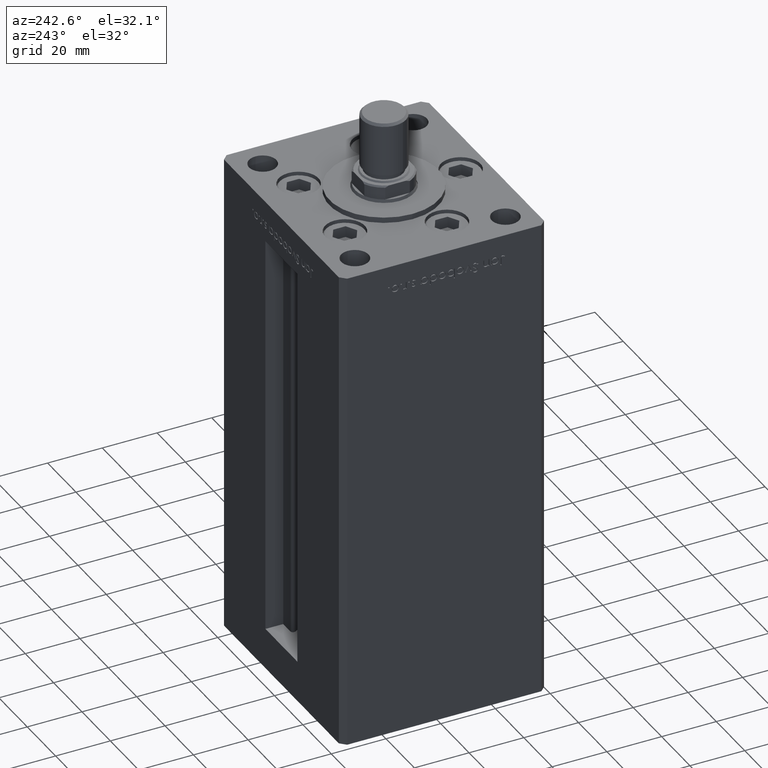
[diagram: clean part render]
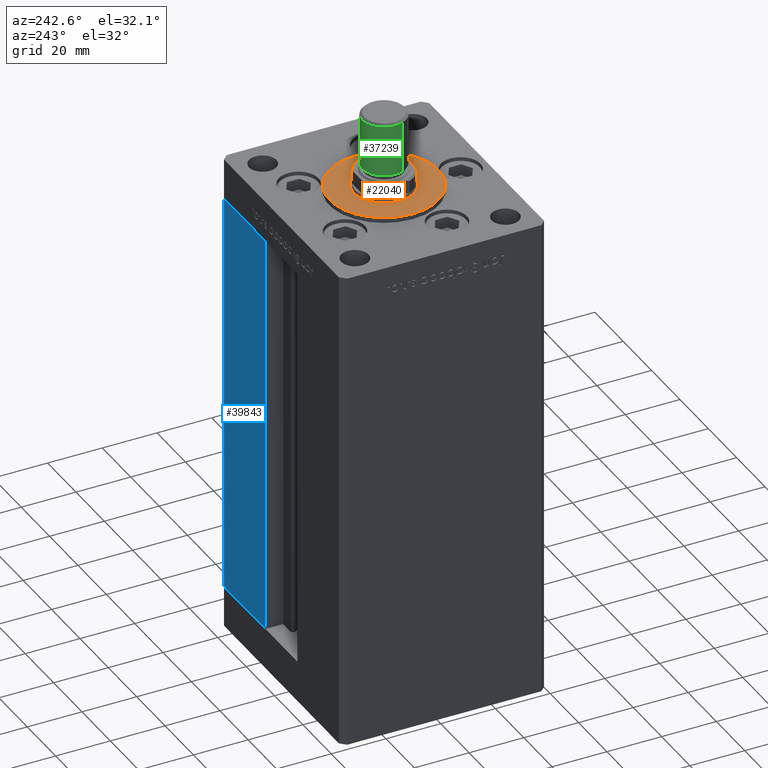
[diagram: same view with three faces highlighted in distinct colors, each labeled with its STEP entity id]
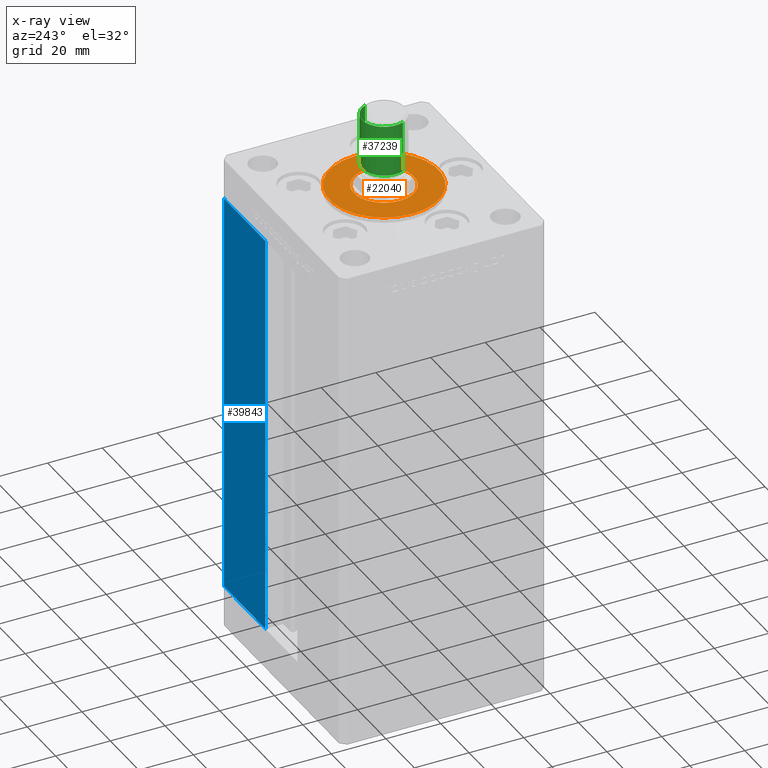
[diagram: x-ray of the same camera — body ghosted, the three highlighted faces saturated]
A machine part, auxiliary view with three faces highlighted in distinct colors.
The next image is the same camera in x-ray (body ghosted, the three faces saturated) — at least one of them is partly hidden behind the body in this view.
Their STEP definitions:

[orange] entity #22040 — the highlighted planar face has unit normal (0, 0, 1).
#611 = VERTEX_POINT ( 'NONE', #17839 ) ;
#1675 = CARTESIAN_POINT ( 'NONE',  ( 20.00000000000000000, -4.489600305612522259E-15, 2.000000000000000000 ) ) ;
#2481 = CARTESIAN_POINT ( 'NONE',  ( 0.000000000000000000, -6.938893903907228378E-15, 2.000000000000000000 ) ) ;
#2621 = AXIS2_PLACEMENT_3D ( 'NONE', #44705, #20838, #4130 ) ;
#4130 = DIRECTION ( 'NONE',  ( 1.000000000000000000, 0.000000000000000000, -0.000000000000000000 ) ) ;
#4495 = CIRCLE ( 'NONE', #18065, 20.00000000000000000 ) ;
#5352 = ORIENTED_EDGE ( 'NONE', *, *, #26842, .T. ) ;
#5939 = AXIS2_PLACEMENT_3D ( 'NONE', #50879, #10588, #26491 ) ;
#6034 = ORIENTED_EDGE ( 'NONE', *, *, #25236, .F. ) ;
#7575 = CARTESIAN_POINT ( 'NONE',  ( 11.00000000000000000, -6.938893903907228378E-15, 2.000000000000000000 ) ) ;
#8371 = FACE_OUTER_BOUND ( 'NONE', #49783, .T. ) ;
#10588 = DIRECTION ( 'NONE',  ( 0.000000000000000000, 0.000000000000000000, 1.000000000000000000 ) ) ;
#12049 = AXIS2_PLACEMENT_3D ( 'NONE', #21937, #33885, #49786 ) ;
#12111 = DIRECTION ( 'NONE',  ( 0.000000000000000000, 0.000000000000000000, 1.000000000000000000 ) ) ;
#14811 = ORIENTED_EDGE ( 'NONE', *, *, #21302, .F. ) ;
#17706 = VERTEX_POINT ( 'NONE', #7575 ) ;
#17839 = CARTESIAN_POINT ( 'NONE',  ( -20.00000000000000000, -6.938893903907228378E-15, 2.000000000000000000 ) ) ;
#18065 = AXIS2_PLACEMENT_3D ( 'NONE', #24314, #12111, #35999 ) ;
#18660 = DIRECTION ( 'NONE',  ( 1.000000000000000000, 0.000000000000000000, 0.000000000000000000 ) ) ;
#20838 = DIRECTION ( 'NONE',  ( 0.000000000000000000, 0.000000000000000000, 1.000000000000000000 ) ) ;
#21302 = EDGE_CURVE ( 'NONE', #17706, #40964, #51724, .T. ) ;
#21937 = CARTESIAN_POINT ( 'NONE',  ( 0.000000000000000000, -6.938893903907228378E-15, 2.000000000000000000 ) ) ;
#22040 = ADVANCED_FACE ( 'NONE', ( #28010, #8371 ), #37276, .T. ) ;
#23066 = CIRCLE ( 'NONE', #12049, 20.00000000000000000 ) ;
#24119 = ORIENTED_EDGE ( 'NONE', *, *, #32522, .T. ) ;
#24314 = CARTESIAN_POINT ( 'NONE',  ( 0.000000000000000000, -6.938893903907228378E-15, 2.000000000000000000 ) ) ;
#25236 = EDGE_CURVE ( 'NONE', #40964, #17706, #34871, .T. ) ;
#26491 = DIRECTION ( 'NONE',  ( 1.000000000000000000, 0.000000000000000000, 0.000000000000000000 ) ) ;
#26842 = EDGE_CURVE ( 'NONE', #37580, #611, #23066, .T. ) ;
#28010 = FACE_BOUND ( 'NONE', #36145, .T. ) ;
#30335 = DIRECTION ( 'NONE',  ( 0.000000000000000000, 0.000000000000000000, 1.000000000000000000 ) ) ;
#32522 = EDGE_CURVE ( 'NONE', #611, #37580, #4495, .T. ) ;
#33885 = DIRECTION ( 'NONE',  ( 0.000000000000000000, 0.000000000000000000, 1.000000000000000000 ) ) ;
#34871 = CIRCLE ( 'NONE', #36573, 11.00000000000000000 ) ;
#35999 = DIRECTION ( 'NONE',  ( 1.000000000000000000, 0.000000000000000000, 0.000000000000000000 ) ) ;
#36145 = EDGE_LOOP ( 'NONE', ( #14811, #6034 ) ) ;
#36573 = AXIS2_PLACEMENT_3D ( 'NONE', #2481, #30335, #18660 ) ;
#37276 = PLANE ( 'NONE',  #2621 ) ;
#37580 = VERTEX_POINT ( 'NONE', #1675 ) ;
#40964 = VERTEX_POINT ( 'NONE', #52312 ) ;
#44705 = CARTESIAN_POINT ( 'NONE',  ( 0.000000000000000000, -6.938893903907228378E-15, 2.000000000000000000 ) ) ;
#49783 = EDGE_LOOP ( 'NONE', ( #24119, #5352 ) ) ;
#49786 = DIRECTION ( 'NONE',  ( 1.000000000000000000, 0.000000000000000000, 0.000000000000000000 ) ) ;
#50879 = CARTESIAN_POINT ( 'NONE',  ( 0.000000000000000000, -6.938893903907228378E-15, 2.000000000000000000 ) ) ;
#51724 = CIRCLE ( 'NONE', #5939, 11.00000000000000000 ) ;
#52312 = CARTESIAN_POINT ( 'NONE',  ( -11.00000000000000000, -5.591782424845139381E-15, 2.000000000000000000 ) ) ;

[blue] entity #39843 — the highlighted planar face has unit normal (-0, -1, 0).
#3112 = CARTESIAN_POINT ( 'NONE',  ( 11.24999999999999289, 37.50000000000000000, 148.5000000000000000 ) ) ;
#3376 = EDGE_LOOP ( 'NONE', ( #11034, #17544, #28561, #46643 ) ) ;
#5522 = EDGE_CURVE ( 'NONE', #48708, #41738, #35134, .T. ) ;
#6355 = DIRECTION ( 'NONE',  ( -2.372271420139223331E-16, -1.000000000000000000, 0.000000000000000000 ) ) ;
#10512 = DIRECTION ( 'NONE',  ( 1.000000000000000000, 0.000000000000000000, 0.000000000000000000 ) ) ;
#10798 = CARTESIAN_POINT ( 'NONE',  ( -11.25000000000000000, 37.50000000000000000, 0.000000000000000000 ) ) ;
#11034 = ORIENTED_EDGE ( 'NONE', *, *, #27073, .T. ) ;
#11337 = CARTESIAN_POINT ( 'NONE',  ( 11.25000000000000000, 37.50000000000000000, 0.000000000000000000 ) ) ;
#15023 = EDGE_CURVE ( 'NONE', #26996, #40063, #18763, .T. ) ;
#17544 = ORIENTED_EDGE ( 'NONE', *, *, #15023, .T. ) ;
#17774 = VECTOR ( 'NONE', #19549, 1000.000000000000000 ) ;
#18683 = CARTESIAN_POINT ( 'NONE',  ( 40.50000000000000000, 37.50000000000000711, 148.5000000000000000 ) ) ;
#18763 = LINE ( 'NONE', #11337, #17774 ) ;
#19264 = LINE ( 'NONE', #51596, #45171 ) ;
#19549 = DIRECTION ( 'NONE',  ( -0.000000000000000000, -0.000000000000000000, 1.000000000000000000 ) ) ;
#19606 = DIRECTION ( 'NONE',  ( 1.000000000000000000, -2.372271420139223331E-16, 0.000000000000000000 ) ) ;
#24166 = AXIS2_PLACEMENT_3D ( 'NONE', #39239, #6355, #19606 ) ;
#26777 = PLANE ( 'NONE',  #24166 ) ;
#26996 = VERTEX_POINT ( 'NONE', #30423 ) ;
#27073 = EDGE_CURVE ( 'NONE', #41738, #26996, #39434, .T. ) ;
#28561 = ORIENTED_EDGE ( 'NONE', *, *, #50042, .T. ) ;
#29048 = VECTOR ( 'NONE', #43138, 1000.000000000000000 ) ;
#29937 = CARTESIAN_POINT ( 'NONE',  ( 40.50000000000000000, 37.50000000000000711, 148.5000000000000000 ) ) ;
#30423 = CARTESIAN_POINT ( 'NONE',  ( 11.25000000000000000, 37.50000000000000000, 0.000000000000000000 ) ) ;
#34860 = DIRECTION ( 'NONE',  ( -0.000000000000000000, -0.000000000000000000, -1.000000000000000000 ) ) ;
#35134 = LINE ( 'NONE', #18683, #41104 ) ;
#38969 = FACE_OUTER_BOUND ( 'NONE', #3376, .T. ) ;
#39239 = CARTESIAN_POINT ( 'NONE',  ( -11.25000000000000000, 37.50000000000000000, 148.5000000000000000 ) ) ;
#39434 = LINE ( 'NONE', #10798, #29048 ) ;
#39843 = ADVANCED_FACE ( 'NONE', ( #38969 ), #26777, .F. ) ;
#40063 = VERTEX_POINT ( 'NONE', #3112 ) ;
#41104 = VECTOR ( 'NONE', #34860, 1000.000000000000000 ) ;
#41738 = VERTEX_POINT ( 'NONE', #44431 ) ;
#43138 = DIRECTION ( 'NONE',  ( -1.000000000000000000, 2.372271420139223331E-16, 0.000000000000000000 ) ) ;
#44431 = CARTESIAN_POINT ( 'NONE',  ( 40.50000000000000000, 37.50000000000000711, 0.000000000000000000 ) ) ;
#45171 = VECTOR ( 'NONE', #10512, 1000.000000000000000 ) ;
#46643 = ORIENTED_EDGE ( 'NONE', *, *, #5522, .T. ) ;
#48708 = VERTEX_POINT ( 'NONE', #29937 ) ;
#50042 = EDGE_CURVE ( 'NONE', #40063, #48708, #19264, .T. ) ;
#51596 = CARTESIAN_POINT ( 'NONE',  ( -11.25000000000000000, 37.50000000000000000, 148.5000000000000000 ) ) ;

[green] entity #37239 — the highlighted cylindrical surface (edge-blend (fillet) strip) has radius 8 mm, axis along (0, 0, 1).
#725 = DIRECTION ( 'NONE',  ( 1.000000000000000000, 0.000000000000000000, 0.000000000000000000 ) ) ;
#2622 = DIRECTION ( 'NONE',  ( 1.000000000000000000, 0.000000000000000000, 0.000000000000000000 ) ) ;
#2758 = EDGE_CURVE ( 'NONE', #9839, #23476, #8991, .T. ) ;
#5004 = DIRECTION ( 'NONE',  ( -0.000000000000000000, -0.000000000000000000, -1.000000000000000000 ) ) ;
#5709 = ORIENTED_EDGE ( 'NONE', *, *, #2758, .T. ) ;
#7621 = AXIS2_PLACEMENT_3D ( 'NONE', #20088, #37306, #725 ) ;
#7964 = AXIS2_PLACEMENT_3D ( 'NONE', #10315, #14827, #2622 ) ;
#8383 = CYLINDRICAL_SURFACE ( 'NONE', #19017, 8.000000000000000000 ) ;
#8991 = LINE ( 'NONE', #41346, #50321 ) ;
#9839 = VERTEX_POINT ( 'NONE', #27697 ) ;
#10300 = CARTESIAN_POINT ( 'NONE',  ( -8.000000000000000000, 0.000000000000000000, 19.50000000000000000 ) ) ;
#10315 = CARTESIAN_POINT ( 'NONE',  ( 0.000000000000000000, 0.000000000000000000, 0.8000000000000055955 ) ) ;
#10743 = ORIENTED_EDGE ( 'NONE', *, *, #51650, .T. ) ;
#14827 = DIRECTION ( 'NONE',  ( -0.000000000000000000, -0.000000000000000000, 1.000000000000000000 ) ) ;
#16941 = CIRCLE ( 'NONE', #7621, 8.000000000000000000 ) ;
#17933 = LINE ( 'NONE', #43106, #24877 ) ;
#18630 = CARTESIAN_POINT ( 'NONE',  ( 8.000000000000000000, 9.797174393178825657E-16, 0.8000000000000055955 ) ) ;
#19017 = AXIS2_PLACEMENT_3D ( 'NONE', #44451, #32258, #49472 ) ;
#19328 = VERTEX_POINT ( 'NONE', #10300 ) ;
#19829 = EDGE_CURVE ( 'NONE', #9839, #19328, #16941, .T. ) ;
#20088 = CARTESIAN_POINT ( 'NONE',  ( 0.000000000000000000, 0.000000000000000000, 19.50000000000000000 ) ) ;
#22565 = CARTESIAN_POINT ( 'NONE',  ( -8.000000000000000000, 0.000000000000000000, 0.8000000000000055955 ) ) ;
#23182 = CIRCLE ( 'NONE', #7964, 8.000000000000000000 ) ;
#23433 = ORIENTED_EDGE ( 'NONE', *, *, #19829, .F. ) ;
#23476 = VERTEX_POINT ( 'NONE', #18630 ) ;
#24877 = VECTOR ( 'NONE', #26673, 1000.000000000000000 ) ;
#26673 = DIRECTION ( 'NONE',  ( -0.000000000000000000, -0.000000000000000000, -1.000000000000000000 ) ) ;
#27697 = CARTESIAN_POINT ( 'NONE',  ( 8.000000000000000000, 9.797174393178825657E-16, 19.50000000000000000 ) ) ;
#29106 = ORIENTED_EDGE ( 'NONE', *, *, #34734, .F. ) ;
#32258 = DIRECTION ( 'NONE',  ( -0.000000000000000000, -0.000000000000000000, -1.000000000000000000 ) ) ;
#34249 = VERTEX_POINT ( 'NONE', #22565 ) ;
#34734 = EDGE_CURVE ( 'NONE', #19328, #34249, #17933, .T. ) ;
#35367 = EDGE_LOOP ( 'NONE', ( #23433, #5709, #10743, #29106 ) ) ;
#37239 = ADVANCED_FACE ( 'NONE', ( #48687 ), #8383, .T. ) ;
#37306 = DIRECTION ( 'NONE',  ( 0.000000000000000000, 0.000000000000000000, 1.000000000000000000 ) ) ;
#41346 = CARTESIAN_POINT ( 'NONE',  ( 8.000000000000000000, 9.797174393178825657E-16, 19.50000000000000000 ) ) ;
#43106 = CARTESIAN_POINT ( 'NONE',  ( -8.000000000000000000, 0.000000000000000000, 19.50000000000000000 ) ) ;
#44451 = CARTESIAN_POINT ( 'NONE',  ( 0.000000000000000000, 0.000000000000000000, 19.50000000000000000 ) ) ;
#48687 = FACE_OUTER_BOUND ( 'NONE', #35367, .T. ) ;
#49472 = DIRECTION ( 'NONE',  ( -1.000000000000000000, 0.000000000000000000, 0.000000000000000000 ) ) ;
#50321 = VECTOR ( 'NONE', #5004, 1000.000000000000000 ) ;
#51650 = EDGE_CURVE ( 'NONE', #23476, #34249, #23182, .T. ) ;